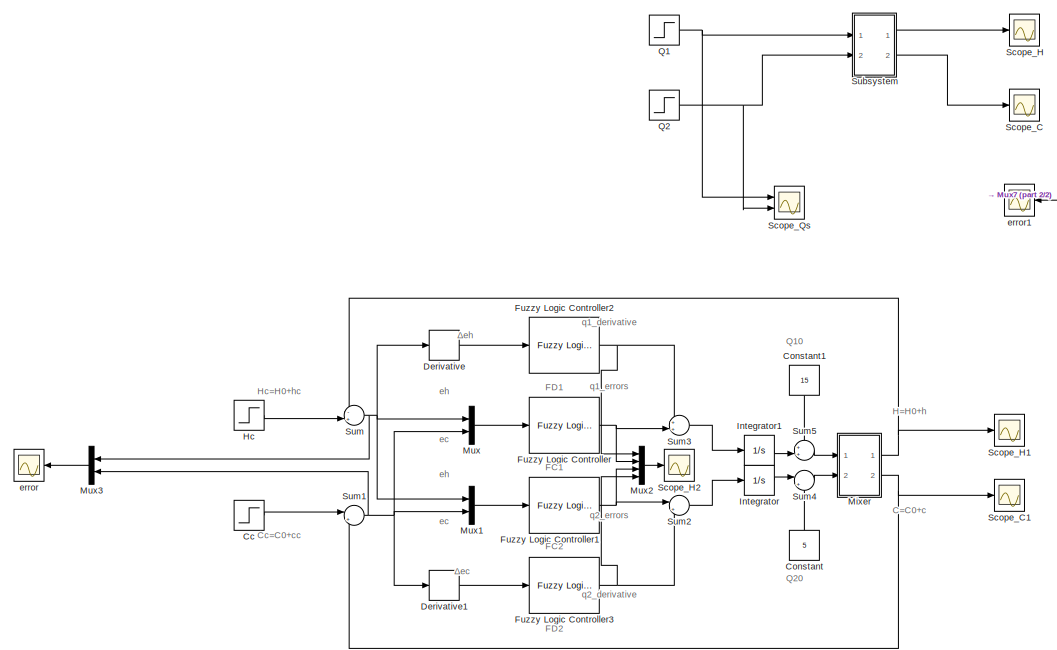
[diagram: root canvas - part 1/2, left side, full height]
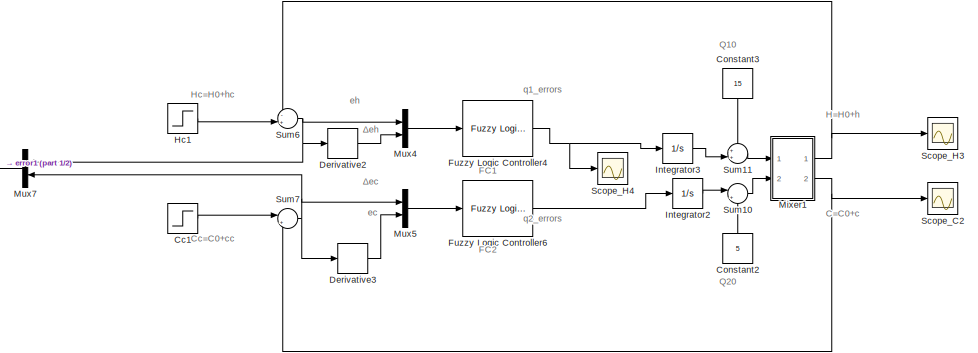
[diagram: root canvas - part 2/2, middle right region]
MODEL slx_ae8619d3ae57
KIND model
CONFIG AbsTol = auto
CONFIG EnableMultiTasking = off
CONFIG FixedStep = auto
CONFIG MaxStep = auto
CONFIG MinStep = auto
CONFIG RelTol = 1e-3
CONFIG SampleTimeConstraint = Unconstrained
CONFIG Solver = VariableStepAuto
CONFIG SolverName = VariableStepAuto
CONFIG StartTime = 0.0
CONFIG StopTime = 200
BLOCK [Step] Cc
  After = 5
  Before = 5
  Commented = on
  SampleTime = 0
  Time = 15
BLOCK [Step] Cc1
  After = 5
  SampleTime = 0
  Time = 15
BLOCK [Constant] Constant
  Commented = on
  NameLocation = right
  Value = 5
BLOCK [Constant] Constant1
  Commented = on
  NameLocation = left
  Value = 15
BLOCK [Constant] Constant2
  NameLocation = right
  Value = 5
BLOCK [Constant] Constant3
  NameLocation = left
  Value = 15
BLOCK [Derivative] Derivative
  Commented = on
BLOCK [Derivative] Derivative1
  Commented = on
BLOCK [Derivative] Derivative2
BLOCK [Derivative] Derivative3
BLOCK [Reference] Fuzzy Logic Controller  REF=fuzblock/Fuzzy Logic   (lib defined in mdl_858b3b3e7478)
Controller
  Commented = on
  Ports = [1, 1]
  SourceBlock = fuzblock/Fuzzy Logic \nController
  SourceProductBaseCode = FL
  SourceType = Fuzzy Inference System
BLOCK [Reference] Fuzzy Logic Controller1  REF=fuzblock/Fuzzy Logic   (lib defined in mdl_858b3b3e7478)
Controller
  Commented = on
  Ports = [1, 1]
  SourceBlock = fuzblock/Fuzzy Logic \nController
  SourceProductBaseCode = FL
  SourceType = Fuzzy Inference System
BLOCK [Reference] Fuzzy Logic Controller2  REF=fuzblock/Fuzzy Logic   (lib defined in mdl_858b3b3e7478)
Controller
  Commented = on
  Ports = [1, 1]
  SourceBlock = fuzblock/Fuzzy Logic \nController
  SourceProductBaseCode = FL
  SourceType = Fuzzy Inference System
BLOCK [Reference] Fuzzy Logic Controller3  REF=fuzblock/Fuzzy Logic   (lib defined in mdl_858b3b3e7478)
Controller
  Commented = on
  Ports = [1, 1]
  SourceBlock = fuzblock/Fuzzy Logic \nController
  SourceProductBaseCode = FL
  SourceType = Fuzzy Inference System
BLOCK [Reference] Fuzzy Logic Controller4  REF=fuzblock/Fuzzy Logic   (lib defined in mdl_858b3b3e7478)
Controller
  Ports = [1, 1]
  SourceBlock = fuzblock/Fuzzy Logic \nController
  SourceProductBaseCode = FL
  SourceType = Fuzzy Inference System
BLOCK [Reference] Fuzzy Logic Controller6  REF=fuzblock/Fuzzy Logic   (lib defined in mdl_858b3b3e7478)
Controller
  Ports = [1, 1]
  SourceBlock = fuzblock/Fuzzy Logic \nController
  SourceProductBaseCode = FL
  SourceType = Fuzzy Inference System
BLOCK [Step] Hc
  After = 5
  Before = 5
  Commented = on
  SampleTime = 0
  Time = 15
BLOCK [Step] Hc1
  After = 5
  SampleTime = 0
  Time = 25
BLOCK [Integrator] Integrator
  Commented = on
  Ports = [1, 1]
BLOCK [Integrator] Integrator1
  Commented = on
  Ports = [1, 1]
BLOCK [Integrator] Integrator2
  Ports = [1, 1]
BLOCK [Integrator] Integrator3
  Ports = [1, 1]
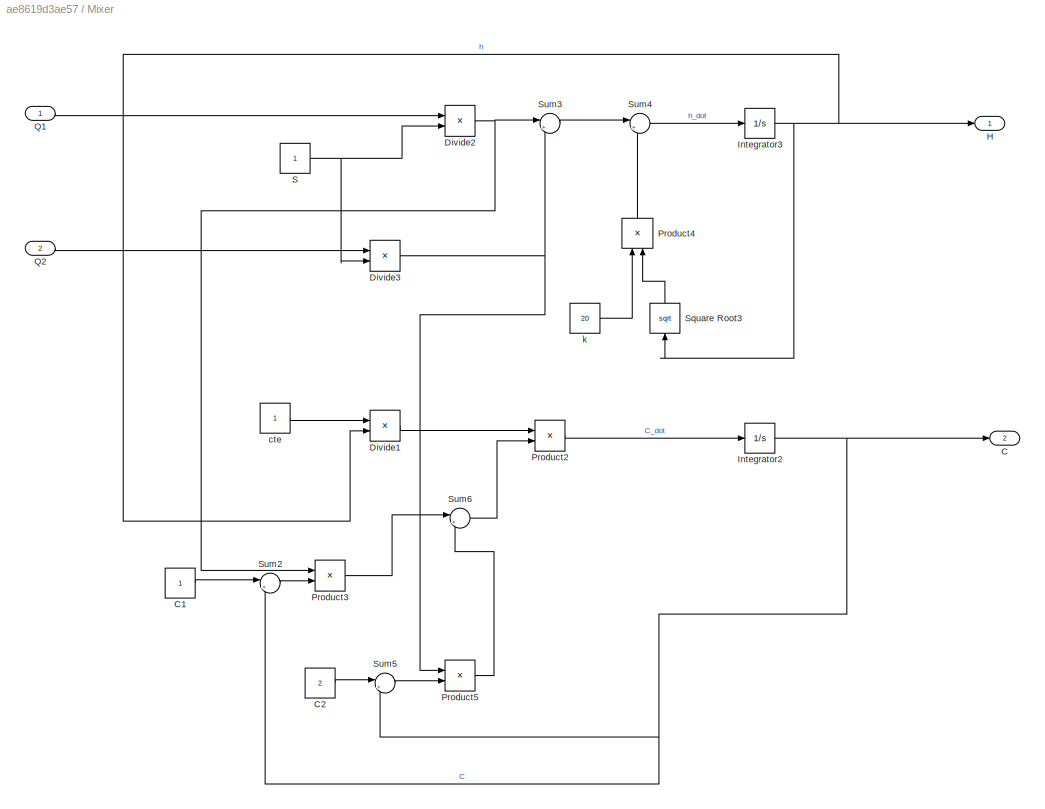
BLOCK [SubSystem] Mixer
  Commented = on
  Ports = [2, 2]
  RequestExecContextInheritance = off
BLOCK [Outport] Mixer/C
  Port = 2
BLOCK [Constant] Mixer/C1
BLOCK [Constant] Mixer/C2
  Value = 2
BLOCK [Product] Mixer/Divide1
  Inputs = */
  Ports = [2, 1]
BLOCK [Product] Mixer/Divide2
  Inputs = */
  Ports = [2, 1]
BLOCK [Product] Mixer/Divide3
  Inputs = */
  Ports = [2, 1]
BLOCK [Outport] Mixer/H
BLOCK [Integrator] Mixer/Integrator2
  InitialCondition = 1.25
  Ports = [1, 1]
BLOCK [Integrator] Mixer/Integrator3
  InitialCondition = 1
  Ports = [1, 1]
BLOCK [Product] Mixer/Product2
  Ports = [2, 1]
BLOCK [Product] Mixer/Product3
  Ports = [2, 1]
BLOCK [Product] Mixer/Product4
  NameLocation = right
  Ports = [2, 1]
BLOCK [Product] Mixer/Product5
  Ports = [2, 1]
BLOCK [Inport] Mixer/Q1
BLOCK [Inport] Mixer/Q2
  Port = 2
BLOCK [Constant] Mixer/S
BLOCK [Sqrt] Mixer/Square Root3
  NameLocation = right
BLOCK [Sum] Mixer/Sum2
  Inputs = |+-
  Ports = [2, 1]
BLOCK [Sum] Mixer/Sum3
  Inputs = |++
  Ports = [2, 1]
BLOCK [Sum] Mixer/Sum4
  Inputs = |+-
  Ports = [2, 1]
BLOCK [Sum] Mixer/Sum5
  Inputs = |+-
  Ports = [2, 1]
BLOCK [Sum] Mixer/Sum6
  Inputs = |++
  Ports = [2, 1]
BLOCK [Constant] Mixer/cte
BLOCK [Constant] Mixer/k
  Value = 20
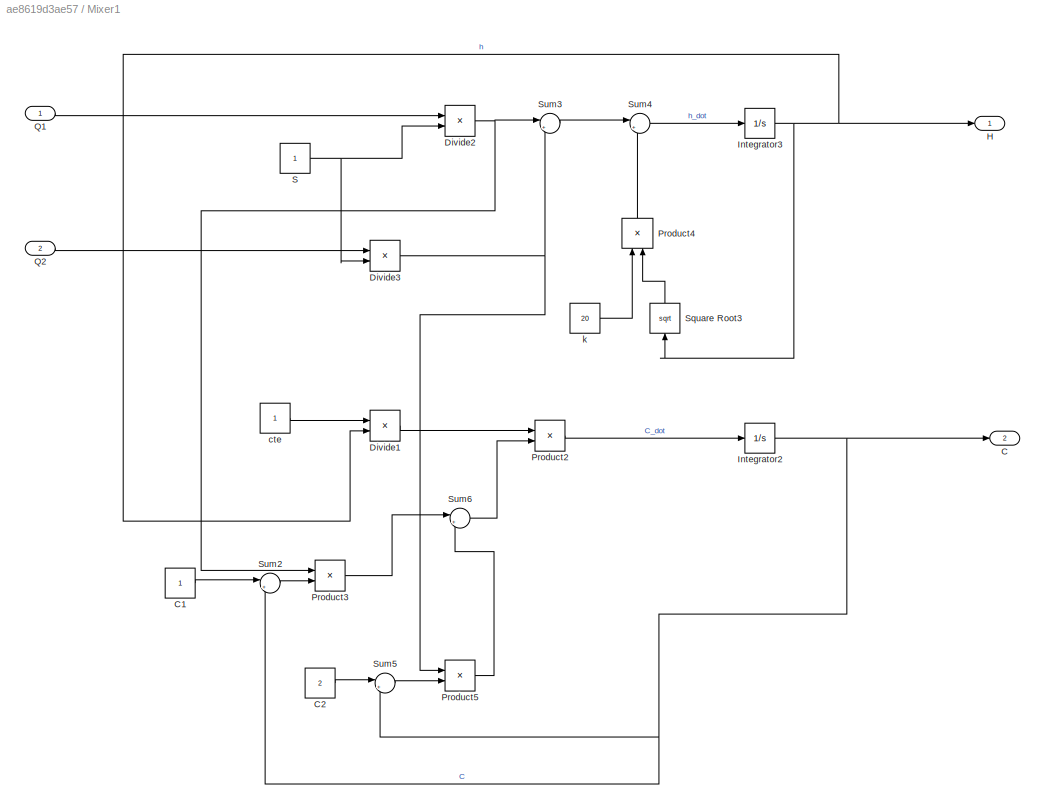
BLOCK [SubSystem] Mixer1
  Ports = [2, 2]
  RequestExecContextInheritance = off
BLOCK [Outport] Mixer1/C
  Port = 2
BLOCK [Constant] Mixer1/C1
BLOCK [Constant] Mixer1/C2
  Value = 2
BLOCK [Product] Mixer1/Divide1
  Inputs = */
  Ports = [2, 1]
BLOCK [Product] Mixer1/Divide2
  Inputs = */
  Ports = [2, 1]
BLOCK [Product] Mixer1/Divide3
  Inputs = */
  Ports = [2, 1]
BLOCK [Outport] Mixer1/H
BLOCK [Integrator] Mixer1/Integrator2
  InitialCondition = 1.25
  Ports = [1, 1]
BLOCK [Integrator] Mixer1/Integrator3
  InitialCondition = 1
  Ports = [1, 1]
BLOCK [Product] Mixer1/Product2
  Ports = [2, 1]
BLOCK [Product] Mixer1/Product3
  Ports = [2, 1]
BLOCK [Product] Mixer1/Product4
  NameLocation = right
  Ports = [2, 1]
BLOCK [Product] Mixer1/Product5
  Ports = [2, 1]
BLOCK [Inport] Mixer1/Q1
BLOCK [Inport] Mixer1/Q2
  Port = 2
BLOCK [Constant] Mixer1/S
BLOCK [Sqrt] Mixer1/Square Root3
  NameLocation = right
BLOCK [Sum] Mixer1/Sum2
  Inputs = |+-
  Ports = [2, 1]
BLOCK [Sum] Mixer1/Sum3
  Inputs = |++
  Ports = [2, 1]
BLOCK [Sum] Mixer1/Sum4
  Inputs = |+-
  Ports = [2, 1]
BLOCK [Sum] Mixer1/Sum5
  Inputs = |+-
  Ports = [2, 1]
BLOCK [Sum] Mixer1/Sum6
  Inputs = |++
  Ports = [2, 1]
BLOCK [Constant] Mixer1/cte
BLOCK [Constant] Mixer1/k
  Value = 20
BLOCK [Mux] Mux
  Commented = on
  DisplayOption = bar
  Inputs = 2
  Ports = [2, 1]
BLOCK [Mux] Mux1
  Commented = on
  DisplayOption = bar
  Inputs = 2
  Ports = [2, 1]
BLOCK [Mux] Mux2
  Commented = on
  DisplayOption = bar
  Ports = [4, 1]
BLOCK [Mux] Mux3
  Commented = on
  DisplayOption = bar
  Inputs = 2
  NameLocation = top
  Ports = [2, 1]
BLOCK [Mux] Mux4
  DisplayOption = bar
  Inputs = 2
  Ports = [2, 1]
BLOCK [Mux] Mux5
  DisplayOption = bar
  Inputs = 2
  Ports = [2, 1]
BLOCK [Mux] Mux7
  DisplayOption = bar
  Inputs = 2
  NameLocation = top
  Ports = [2, 1]
BLOCK [Step] Q1
  After = 15
  Before = 15
  Commented = on
  SampleTime = 0
  Time = 15
BLOCK [Step] Q2
  After = 5
  Before = 5
  Commented = on
  SampleTime = 0
  Time = 15
BLOCK [Scope] Scope_C
  Commented = on
  Floating = off
  NumInputPorts = 1
  Ports = [1]
  ScopeSpecificationString = Simulink.scopes.TimeScopeBlockCfg('CurrentConfiguration', extmgr.ConfigurationSet(extmgr.Configuration('Core','General UI',true),extmgr.Configuration('Core','Source UI',true),extmgr.Configuration('Sources','WiredSimulink',true,'DataLoggingVariableName','ScopeData1'),extmgr.Configuration('Visuals','Time Domain',true,'SerializedDisplays',{struct('MinYLimReal','0.40607','MaxYLimReal','1.34534','YLabe...<+1396ch>
BLOCK [Scope] Scope_C1
  Commented = on
  Floating = off
  NumInputPorts = 1
  Ports = [1]
  ScopeSpecificationString = Simulink.scopes.TimeScopeBlockCfg('CurrentConfiguration', extmgr.ConfigurationSet(extmgr.Configuration('Core','General UI',true),extmgr.Configuration('Core','Source UI',true),extmgr.Configuration('Sources','WiredSimulink',true,'DataLoggingVariableName','ScopeData1'),extmgr.Configuration('Visuals','Time Domain',true,'SerializedDisplays',{struct('MinYLimReal','1.09737','MaxYLimReal','1.26696','YLabe...<+1391ch>
BLOCK [Scope] Scope_C2
  Floating = off
  NumInputPorts = 1
  Ports = [1]
  ScopeSpecificationString = Simulink.scopes.TimeScopeBlockCfg('CurrentConfiguration', extmgr.ConfigurationSet(extmgr.Configuration('Core','General UI',true),extmgr.Configuration('Core','Source UI',true),extmgr.Configuration('Sources','WiredSimulink',true,'DataLoggingVariableName','ScopeData1'),extmgr.Configuration('Visuals','Time Domain',true,'SerializedDisplays',{struct('MinYLimReal','-0.65864','MaxYLimReal','5.63489','YLab...<+1386ch>
BLOCK [Scope] Scope_H
  Commented = on
  Floating = off
  NumInputPorts = 1
  Ports = [1]
  ScopeSpecificationString = Simulink.scopes.TimeScopeBlockCfg('CurrentConfiguration', extmgr.ConfigurationSet(extmgr.Configuration('Core','General UI',true),extmgr.Configuration('Core','Source UI',true),extmgr.Configuration('Sources','WiredSimulink',true),extmgr.Configuration('Visuals','Time Domain',true,'SerializedDisplays',{struct('MinYLimReal','0.9','MaxYLimReal','1.1','YLabelReal','','MinYLimMag','0.9','MaxYLimMag','1.1'...<+1325ch>
BLOCK [Scope] Scope_H1
  Commented = on
  Floating = off
  NumInputPorts = 1
  Ports = [1]
  ScopeSpecificationString = Simulink.scopes.TimeScopeBlockCfg('CurrentConfiguration', extmgr.ConfigurationSet(extmgr.Configuration('Core','General UI',true),extmgr.Configuration('Core','Source UI',true),extmgr.Configuration('Sources','WiredSimulink',true,'DataLoggingVariableName','ScopeData2'),extmgr.Configuration('Visuals','Time Domain',true,'SerializedDisplays',{struct('MinYLimReal','0.66675','MaxYLimReal','3.99925','YLabe...<+1391ch>
BLOCK [Scope] Scope_H2
  Commented = on
  Floating = off
  NumInputPorts = 1
  Ports = [1]
  ScopeSpecificationString = Simulink.scopes.TimeScopeBlockCfg('CurrentConfiguration', extmgr.ConfigurationSet(extmgr.Configuration('Core','General UI',true),extmgr.Configuration('Core','Source UI',true),extmgr.Configuration('Sources','WiredSimulink',true,'DataLoggingVariableName','ScopeData1'),extmgr.Configuration('Visuals','Time Domain',true,'SerializedDisplays',{struct('MinYLimReal','-1.89482','MaxYLimReal','11.32055','YLa...<+1515ch>
BLOCK [Scope] Scope_H3
  Floating = off
  NumInputPorts = 1
  Ports = [1]
  ScopeSpecificationString = Simulink.scopes.TimeScopeBlockCfg('CurrentConfiguration', extmgr.ConfigurationSet(extmgr.Configuration('Core','General UI',true),extmgr.Configuration('Core','Source UI',true),extmgr.Configuration('Sources','WiredSimulink',true,'DataLoggingVariableName','ScopeData2'),extmgr.Configuration('Visuals','Time Domain',true,'SerializedDisplays',{struct('MinYLimReal','-0.86856','MaxYLimReal','8.33727','YLab...<+1394ch>
BLOCK [Scope] Scope_H4
  Floating = off
  NumInputPorts = 1
  Ports = [1]
  ScopeSpecificationString = Simulink.scopes.TimeScopeBlockCfg('CurrentConfiguration', extmgr.ConfigurationSet(extmgr.Configuration('Core','General UI',true),extmgr.Configuration('Core','Source UI',true),extmgr.Configuration('Sources','WiredSimulink',true,'DataLoggingVariableName','ScopeData3'),extmgr.Configuration('Visuals','Time Domain',true,'SerializedDisplays',{struct('MinYLimReal','-1.89482','MaxYLimReal','11.32055','YLa...<+1435ch>
BLOCK [Scope] Scope_Qs
  Commented = on
  Floating = off
  NumInputPorts = 2
  Ports = [2]
  ScopeSpecificationString = Simulink.scopes.TimeScopeBlockCfg('CurrentConfiguration', extmgr.ConfigurationSet(extmgr.Configuration('Core','General UI',true),extmgr.Configuration('Core','Source UI',true),extmgr.Configuration('Sources','WiredSimulink',true,'DataLoggingVariableName','ScopeData2'),extmgr.Configuration('Visuals','Time Domain',true,'SerializedDisplays',{struct('MinYLimReal','3.75','MaxYLimReal','16.25','YLabelReal...<+1366ch>
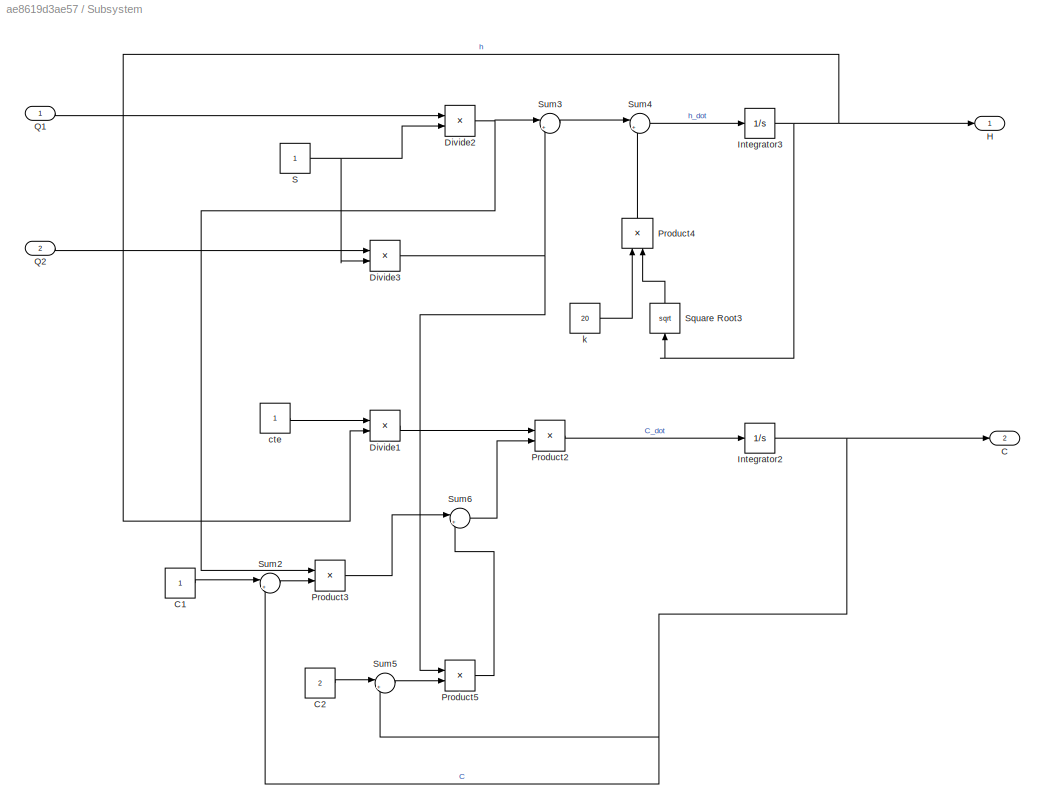
BLOCK [SubSystem] Subsystem
  Commented = on
  Ports = [2, 2]
  RequestExecContextInheritance = off
BLOCK [Outport] Subsystem/C
  Port = 2
BLOCK [Constant] Subsystem/C1
BLOCK [Constant] Subsystem/C2
  Value = 2
BLOCK [Product] Subsystem/Divide1
  Inputs = */
  Ports = [2, 1]
BLOCK [Product] Subsystem/Divide2
  Inputs = */
  Ports = [2, 1]
BLOCK [Product] Subsystem/Divide3
  Inputs = */
  Ports = [2, 1]
BLOCK [Outport] Subsystem/H
BLOCK [Integrator] Subsystem/Integrator2
  InitialCondition = 1.25
  Ports = [1, 1]
BLOCK [Integrator] Subsystem/Integrator3
  InitialCondition = 1
  Ports = [1, 1]
BLOCK [Product] Subsystem/Product2
  Ports = [2, 1]
BLOCK [Product] Subsystem/Product3
  Ports = [2, 1]
BLOCK [Product] Subsystem/Product4
  NameLocation = right
  Ports = [2, 1]
BLOCK [Product] Subsystem/Product5
  Ports = [2, 1]
BLOCK [Inport] Subsystem/Q1
BLOCK [Inport] Subsystem/Q2
  Port = 2
BLOCK [Constant] Subsystem/S
BLOCK [Sqrt] Subsystem/Square Root3
  NameLocation = right
BLOCK [Sum] Subsystem/Sum2
  Inputs = |+-
  Ports = [2, 1]
BLOCK [Sum] Subsystem/Sum3
  Inputs = |++
  Ports = [2, 1]
BLOCK [Sum] Subsystem/Sum4
  Inputs = |+-
  Ports = [2, 1]
BLOCK [Sum] Subsystem/Sum5
  Inputs = |+-
  Ports = [2, 1]
BLOCK [Sum] Subsystem/Sum6
  Inputs = |++
  Ports = [2, 1]
BLOCK [Constant] Subsystem/cte
BLOCK [Constant] Subsystem/k
  Value = 20
BLOCK [Sum] Sum
  Commented = on
  Inputs = -+|
  Ports = [2, 1]
BLOCK [Sum] Sum1
  Commented = on
  Inputs = |+-
  Ports = [2, 1]
BLOCK [Sum] Sum10
  Inputs = |++
  Ports = [2, 1]
BLOCK [Sum] Sum11
  Inputs = ++|
  Ports = [2, 1]
BLOCK [Sum] Sum2
  Commented = on
  Inputs = |++
  Ports = [2, 1]
BLOCK [Sum] Sum3
  Commented = on
  Inputs = ++|
  Ports = [2, 1]
BLOCK [Sum] Sum4
  Commented = on
  Inputs = |++
  Ports = [2, 1]
BLOCK [Sum] Sum5
  Commented = on
  Inputs = ++|
  Ports = [2, 1]
BLOCK [Sum] Sum6
  Inputs = -+|
  Ports = [2, 1]
BLOCK [Sum] Sum7
  Inputs = |+-
  Ports = [2, 1]
BLOCK [Scope] error
  Commented = on
  Floating = off
  NameLocation = top
  NumInputPorts = 1
  Ports = [1]
  ScopeSpecificationString = Simulink.scopes.TimeScopeBlockCfg('CurrentConfiguration', extmgr.ConfigurationSet(extmgr.Configuration('Core','General UI',true),extmgr.Configuration('Core','Source UI',true),extmgr.Configuration('Sources','WiredSimulink',true,'DataLoggingVariableName','ScopeData2'),extmgr.Configuration('Visuals','Time Domain',true,'SerializedDisplays',{struct('MinYLimReal','-1.89482','MaxYLimReal','11.32055','YLa...<+1419ch>
BLOCK [Scope] error1
  Floating = off
  NameLocation = top
  NumInputPorts = 1
  Ports = [1]
  ScopeSpecificationString = Simulink.scopes.TimeScopeBlockCfg('CurrentConfiguration', extmgr.ConfigurationSet(extmgr.Configuration('Core','General UI',true),extmgr.Configuration('Core','Source UI',true),extmgr.Configuration('Sources','WiredSimulink',true,'DataLoggingVariableName','ScopeData4'),extmgr.Configuration('Visuals','Time Domain',true,'SerializedDisplays',{struct('MinYLimReal','-1.89482','MaxYLimReal','11.32055','YLa...<+1409ch>
ANNOTATION (root): C=C0+c
ANNOTATION (root): Cc=C0+cc
ANNOTATION (root): FC1
ANNOTATION (root): FC2
ANNOTATION (root): FD1
ANNOTATION (root): FD2
ANNOTATION (root): H=H0+h
ANNOTATION (root): Hc=H0+hc
ANNOTATION (root): Q10
ANNOTATION (root): Q20
ANNOTATION (root): ec
ANNOTATION (root): eh
ANNOTATION (root): q1_derivative
ANNOTATION (root): q1_errors
ANNOTATION (root): q2_derivative
ANNOTATION (root): q2_errors
ANNOTATION (root): Δec
ANNOTATION (root): Δeh
LINE Cc1:1 -> Sum7:1
LINE Cc:1 -> Sum1:1
LINE Constant1:1 -> Sum5:1
LINE Constant2:1 -> Sum10:2
LINE Constant3:1 -> Sum11:1
LINE Constant:1 -> Sum4:2
LINE Derivative1:1 -> Fuzzy Logic Controller3:1
LINE Derivative2:1 -> Mux4:2
LINE Derivative3:1 -> Mux5:2
LINE Derivative:1 -> Fuzzy Logic Controller2:1
NET Fuzzy Logic Controller1:1 -> Mux2:3, Sum2:1
NET Fuzzy Logic Controller2:1 -> Mux2:1, Sum3:1
NET Fuzzy Logic Controller3:1 -> Mux2:4, Sum2:2
NET Fuzzy Logic Controller4:1 -> Integrator3:1, Scope_H4:1
LINE Fuzzy Logic Controller6:1 -> Integrator2:1
NET Fuzzy Logic Controller:1 -> Mux2:2, Sum3:2
LINE Hc1:1 -> Sum6:2
LINE Hc:1 -> Sum:2
LINE Integrator1:1 -> Sum5:2
LINE Integrator2:1 -> Sum10:1
LINE Integrator3:1 -> Sum11:2
LINE Integrator:1 -> Sum4:1
LINE Mixer/C1:1 -> Mixer/Sum2:1
LINE Mixer/C2:1 -> Mixer/Sum5:1
LINE Mixer/Divide1:1 -> Mixer/Product2:1
NET Mixer/Divide2:1 -> Mixer/Product3:1, Mixer/Sum3:1
NET Mixer/Divide3:1 -> Mixer/Product5:1, Mixer/Sum3:2
NET Mixer/Integrator2:1 -> Mixer/C:1, Mixer/Sum2:2, Mixer/Sum5:2
NET Mixer/Integrator3:1 -> Mixer/Divide1:2, Mixer/H:1, Mixer/Square Root3:1
LINE Mixer/Product2:1 -> Mixer/Integrator2:1
LINE Mixer/Product3:1 -> Mixer/Sum6:1
LINE Mixer/Product4:1 -> Mixer/Sum4:2
LINE Mixer/Product5:1 -> Mixer/Sum6:2
LINE Mixer/Q1:1 -> Mixer/Divide2:1
LINE Mixer/Q2:1 -> Mixer/Divide3:1
NET Mixer/S:1 -> Mixer/Divide2:2, Mixer/Divide3:2
LINE Mixer/Square Root3:1 -> Mixer/Product4:2
LINE Mixer/Sum2:1 -> Mixer/Product3:2
LINE Mixer/Sum3:1 -> Mixer/Sum4:1
LINE Mixer/Sum4:1 -> Mixer/Integrator3:1
LINE Mixer/Sum5:1 -> Mixer/Product5:2
LINE Mixer/Sum6:1 -> Mixer/Product2:2
LINE Mixer/cte:1 -> Mixer/Divide1:1
LINE Mixer/k:1 -> Mixer/Product4:1
LINE Mixer1/C1:1 -> Mixer1/Sum2:1
LINE Mixer1/C2:1 -> Mixer1/Sum5:1
LINE Mixer1/Divide1:1 -> Mixer1/Product2:1
NET Mixer1/Divide2:1 -> Mixer1/Product3:1, Mixer1/Sum3:1
NET Mixer1/Divide3:1 -> Mixer1/Product5:1, Mixer1/Sum3:2
NET Mixer1/Integrator2:1 -> Mixer1/C:1, Mixer1/Sum2:2, Mixer1/Sum5:2
NET Mixer1/Integrator3:1 -> Mixer1/Divide1:2, Mixer1/H:1, Mixer1/Square Root3:1
LINE Mixer1/Product2:1 -> Mixer1/Integrator2:1
LINE Mixer1/Product3:1 -> Mixer1/Sum6:1
LINE Mixer1/Product4:1 -> Mixer1/Sum4:2
LINE Mixer1/Product5:1 -> Mixer1/Sum6:2
LINE Mixer1/Q1:1 -> Mixer1/Divide2:1
LINE Mixer1/Q2:1 -> Mixer1/Divide3:1
NET Mixer1/S:1 -> Mixer1/Divide2:2, Mixer1/Divide3:2
LINE Mixer1/Square Root3:1 -> Mixer1/Product4:2
LINE Mixer1/Sum2:1 -> Mixer1/Product3:2
LINE Mixer1/Sum3:1 -> Mixer1/Sum4:1
LINE Mixer1/Sum4:1 -> Mixer1/Integrator3:1
LINE Mixer1/Sum5:1 -> Mixer1/Product5:2
LINE Mixer1/Sum6:1 -> Mixer1/Product2:2
LINE Mixer1/cte:1 -> Mixer1/Divide1:1
LINE Mixer1/k:1 -> Mixer1/Product4:1
NET Mixer1:1 -> Scope_H3:1, Sum6:1
NET Mixer1:2 -> Scope_C2:1, Sum7:2
NET Mixer:1 -> Scope_H1:1, Sum:1
NET Mixer:2 -> Scope_C1:1, Sum1:2
LINE Mux1:1 -> Fuzzy Logic Controller1:1
LINE Mux2:1 -> Scope_H2:1
LINE Mux3:1 -> error:1
LINE Mux4:1 -> Fuzzy Logic Controller4:1
LINE Mux5:1 -> Fuzzy Logic Controller6:1
LINE Mux7:1 -> error1:1
LINE Mux:1 -> Fuzzy Logic Controller:1
NET Q1:1 -> Scope_Qs:1, Subsystem:1
NET Q2:1 -> Scope_Qs:2, Subsystem:2
LINE Subsystem/C1:1 -> Subsystem/Sum2:1
LINE Subsystem/C2:1 -> Subsystem/Sum5:1
LINE Subsystem/Divide1:1 -> Subsystem/Product2:1
NET Subsystem/Divide2:1 -> Subsystem/Product3:1, Subsystem/Sum3:1
NET Subsystem/Divide3:1 -> Subsystem/Product5:1, Subsystem/Sum3:2
NET Subsystem/Integrator2:1 -> Subsystem/C:1, Subsystem/Sum2:2, Subsystem/Sum5:2
NET Subsystem/Integrator3:1 -> Subsystem/Divide1:2, Subsystem/H:1, Subsystem/Square Root3:1
LINE Subsystem/Product2:1 -> Subsystem/Integrator2:1
LINE Subsystem/Product3:1 -> Subsystem/Sum6:1
LINE Subsystem/Product4:1 -> Subsystem/Sum4:2
LINE Subsystem/Product5:1 -> Subsystem/Sum6:2
LINE Subsystem/Q1:1 -> Subsystem/Divide2:1
LINE Subsystem/Q2:1 -> Subsystem/Divide3:1
NET Subsystem/S:1 -> Subsystem/Divide2:2, Subsystem/Divide3:2
LINE Subsystem/Square Root3:1 -> Subsystem/Product4:2
LINE Subsystem/Sum2:1 -> Subsystem/Product3:2
LINE Subsystem/Sum3:1 -> Subsystem/Sum4:1
LINE Subsystem/Sum4:1 -> Subsystem/Integrator3:1
LINE Subsystem/Sum5:1 -> Subsystem/Product5:2
LINE Subsystem/Sum6:1 -> Subsystem/Product2:2
LINE Subsystem/cte:1 -> Subsystem/Divide1:1
LINE Subsystem/k:1 -> Subsystem/Product4:1
LINE Subsystem:1 -> Scope_H:1
LINE Subsystem:2 -> Scope_C:1
LINE Sum10:1 -> Mixer1:2
LINE Sum11:1 -> Mixer1:1
NET Sum1:1 -> Derivative1:1, Mux1:2, Mux3:2, Mux:2
LINE Sum2:1 -> Integrator:1
LINE Sum3:1 -> Integrator1:1
LINE Sum4:1 -> Mixer:2
LINE Sum5:1 -> Mixer:1
NET Sum6:1 -> Derivative2:1, Mux4:1, Mux7:1
NET Sum7:1 -> Derivative3:1, Mux5:1, Mux7:2
NET Sum:1 -> Derivative:1, Mux1:1, Mux3:1, Mux:1
note: NET lines group one-source signal fan-out (src -> all destinations, sorted); 1:1 wires keep LINE
